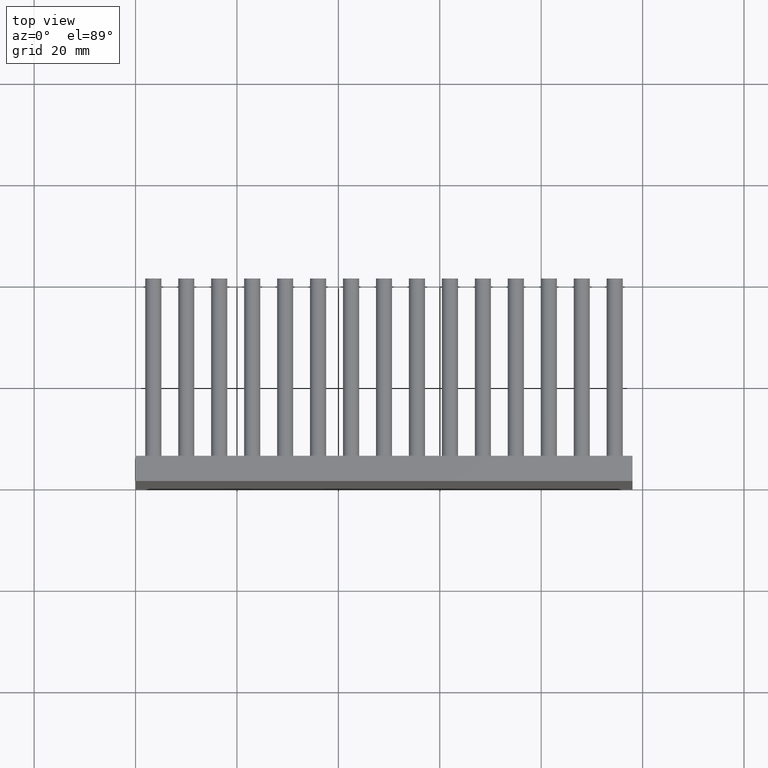
[diagram: clean part render]
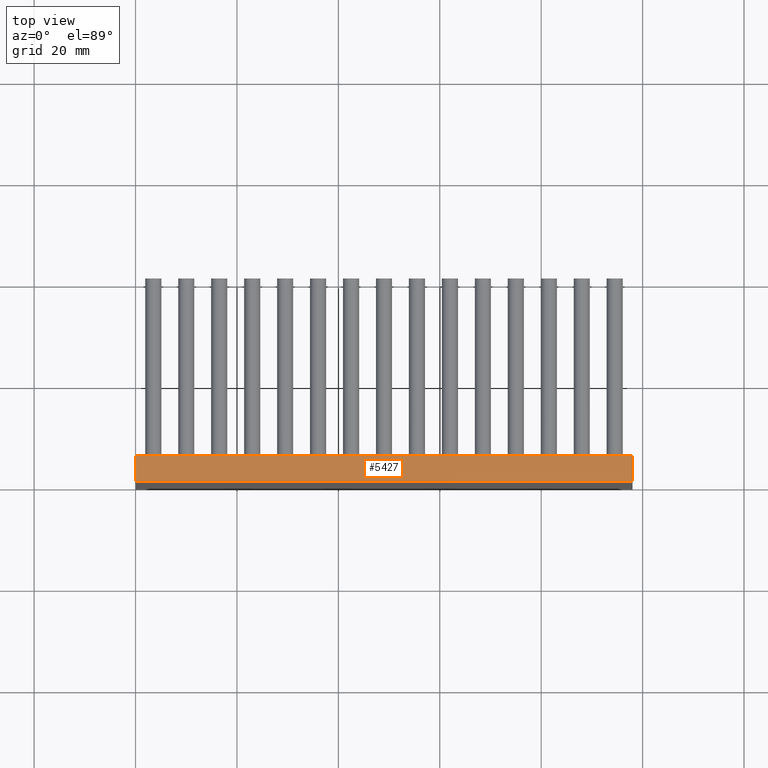
[diagram: same view with one face highlighted and labeled with its STEP entity id]
A machine part, top view. The second image highlights one B-rep face of the part: STEP entity #5427.
In plain terms, the highlighted planar face has unit normal (0, 0, -1).
Its self-contained STEP definition (entity closure, byte-faithful):
#685 = DIRECTION ( 'NONE',  ( -0.0000000000000000000, -1.000000000000000000, -0.0000000000000000000 ) ) ;
#792 = DIRECTION ( 'NONE',  ( 1.000000000000000000, 0.0000000000000000000, 0.0000000000000000000 ) ) ;
#1067 = VERTEX_POINT ( 'NONE', #10269 ) ;
#1464 = FACE_OUTER_BOUND ( 'NONE', #3984, .T. ) ;
#1734 = DIRECTION ( 'NONE',  ( 0.0000000000000000000, 0.0000000000000000000, -1.000000000000000000 ) ) ;
#2693 = VECTOR ( 'NONE', #10812, 1000.000000000000000 ) ;
#3192 = EDGE_CURVE ( 'NONE', #1067, #7529, #10625, .T. ) ;
#3923 = ORIENTED_EDGE ( 'NONE', *, *, #10182, .T. ) ;
#3984 = EDGE_LOOP ( 'NONE', ( #7497, #12183, #15590, #3923 ) ) ;
#4726 = LINE ( 'NONE', #6377, #6859 ) ;
#5205 = LINE ( 'NONE', #17651, #11471 ) ;
#5427 = ADVANCED_FACE ( 'NONE', ( #1464 ), #11398, .F. ) ;
#6377 = CARTESIAN_POINT ( 'NONE',  ( 98.00000000000001421, 5.000000000000000000, 98.00000000000000000 ) ) ;
#6859 = VECTOR ( 'NONE', #685, 1000.000000000000000 ) ;
#7153 = DIRECTION ( 'NONE',  ( -1.000000000000000000, 0.0000000000000000000, -0.0000000000000000000 ) ) ;
#7497 = ORIENTED_EDGE ( 'NONE', *, *, #8865, .T. ) ;
#7529 = VERTEX_POINT ( 'NONE', #14537 ) ;
#7871 = CARTESIAN_POINT ( 'NONE',  ( 1.200153863164406030E-14, 5.000000000000000000, 98.00000000000000000 ) ) ;
#8865 = EDGE_CURVE ( 'NONE', #10131, #9358, #5205, .T. ) ;
#9277 = DIRECTION ( 'NONE',  ( -0.0000000000000000000, -1.000000000000000000, -0.0000000000000000000 ) ) ;
#9358 = VERTEX_POINT ( 'NONE', #16258 ) ;
#10131 = VERTEX_POINT ( 'NONE', #17372 ) ;
#10182 = EDGE_CURVE ( 'NONE', #1067, #10131, #13699, .T. ) ;
#10269 = CARTESIAN_POINT ( 'NONE',  ( 1.200153863164406030E-14, 5.000000000000000000, 98.00000000000000000 ) ) ;
#10625 = LINE ( 'NONE', #16252, #2693 ) ;
#10812 = DIRECTION ( 'NONE',  ( 1.000000000000000000, 0.0000000000000000000, 0.0000000000000000000 ) ) ;
#11398 = PLANE ( 'NONE',  #13874 ) ;
#11471 = VECTOR ( 'NONE', #792, 1000.000000000000000 ) ;
#12183 = ORIENTED_EDGE ( 'NONE', *, *, #16394, .F. ) ;
#13699 = LINE ( 'NONE', #7871, #14146 ) ;
#13874 = AXIS2_PLACEMENT_3D ( 'NONE', #14355, #1734, #7153 ) ;
#14146 = VECTOR ( 'NONE', #9277, 1000.000000000000000 ) ;
#14355 = CARTESIAN_POINT ( 'NONE',  ( 1.200153863164406030E-14, 5.000000000000000000, 98.00000000000000000 ) ) ;
#14537 = CARTESIAN_POINT ( 'NONE',  ( 98.00000000000001421, 5.000000000000000000, 98.00000000000000000 ) ) ;
#15590 = ORIENTED_EDGE ( 'NONE', *, *, #3192, .F. ) ;
#16252 = CARTESIAN_POINT ( 'NONE',  ( 1.200153863164406030E-14, 5.000000000000000000, 98.00000000000000000 ) ) ;
#16258 = CARTESIAN_POINT ( 'NONE',  ( 98.00000000000001421, 0.0000000000000000000, 98.00000000000000000 ) ) ;
#16394 = EDGE_CURVE ( 'NONE', #7529, #9358, #4726, .T. ) ;
#17372 = CARTESIAN_POINT ( 'NONE',  ( 1.200153863164406030E-14, 0.0000000000000000000, 98.00000000000000000 ) ) ;
#17651 = CARTESIAN_POINT ( 'NONE',  ( 1.200153863164406030E-14, 0.0000000000000000000, 98.00000000000000000 ) ) ;